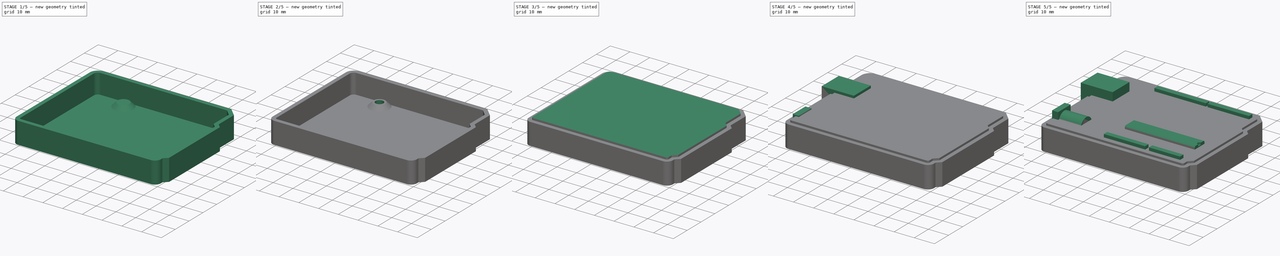
[diagram: build sequence overview — one tinted view per stage of 5, left to right]
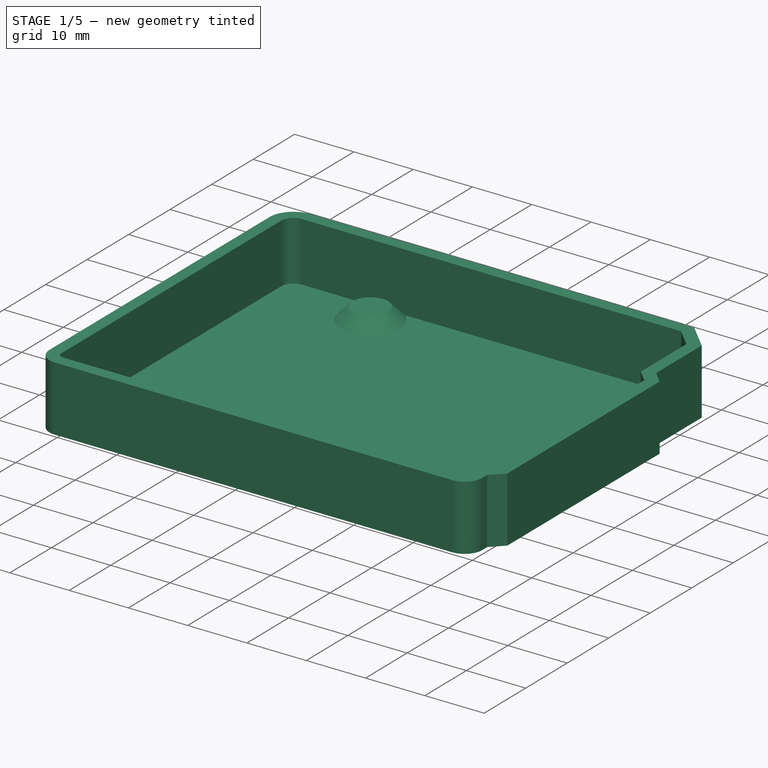
[diagram: stage 1 of 5 — iso view after this stage's code; geometry added in this stage tinted green]
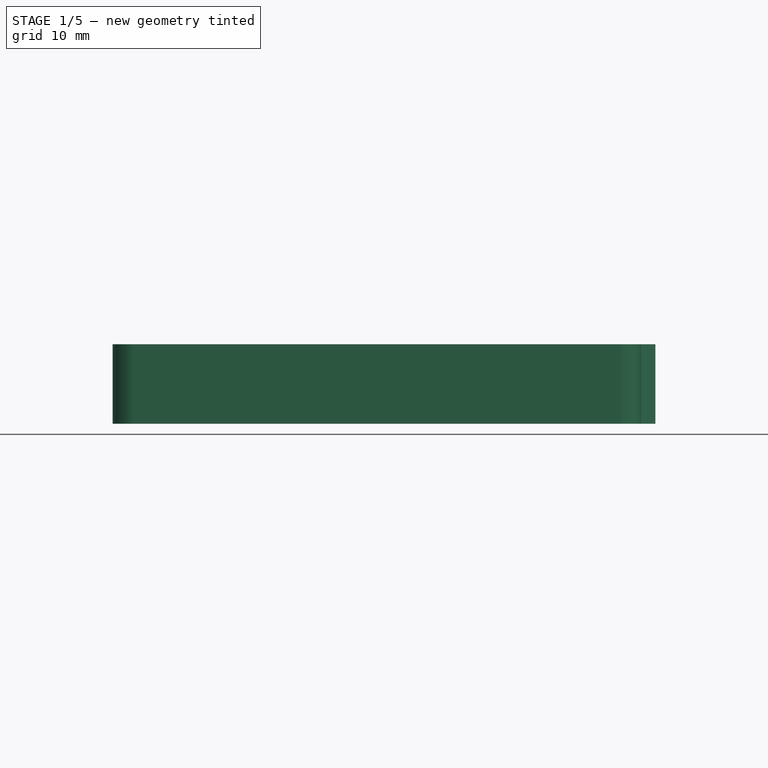
[diagram: stage 1 of 5 — front view after this stage's code; geometry added in this stage tinted green]
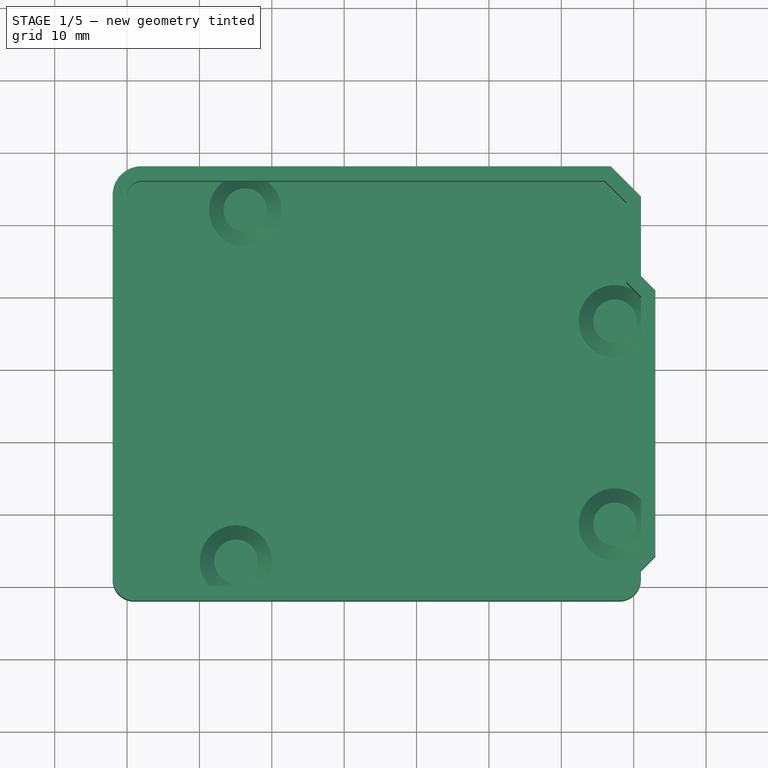
[diagram: stage 1 of 5 — top view after this stage's code; geometry added in this stage tinted green]
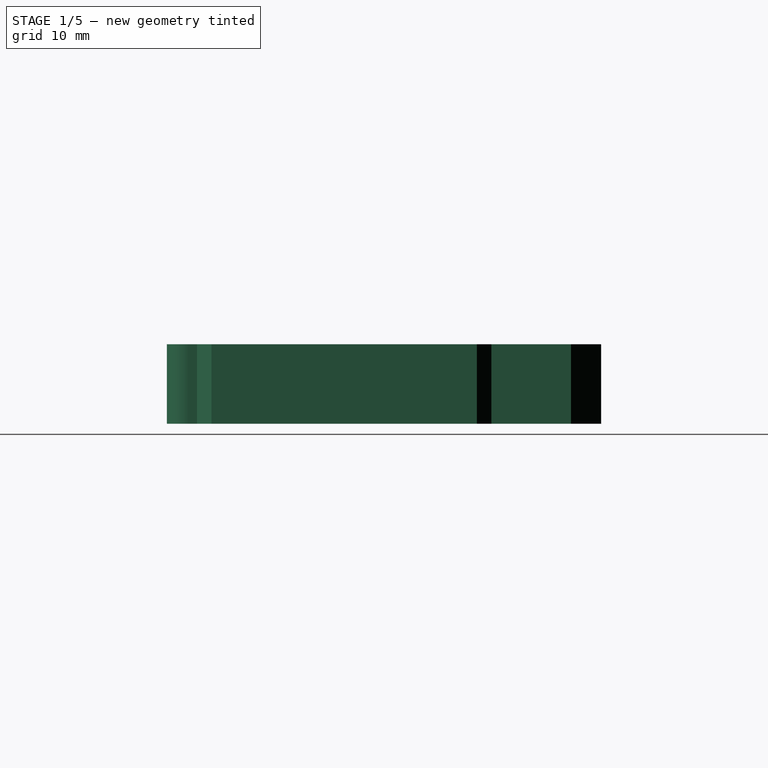
[diagram: stage 1 of 5 — right view after this stage's code; geometry added in this stage tinted green]
FCSTD DOCUMENT  (FreeCAD 0.19R)
Label: CASE-ARDUINO
License: All rights reserved
LicenseURL: http://en.wikipedia.org/wiki/All_rights_reserved
objects: Part::Extrusion×22, Part::Part2DObjectPython×19, Sketcher::SketchObject×10, Part::Cut×6, Part::MultiFuse×5, Part::Loft×4, PartDesign::Chamfer×1, Part::Feature×1
note: 69 computed .brp shape members not serialized (recipe doc carries the construction recipe); baked Part::Feature solids carry a one-line shape summary decoded from their .brp

FEATURE [Sketcher::SketchObject] Sketch006
  MapMode = 5
  Placement = pos=(0,0,1) rot=(0,0,1;0rad)
  sketch-geometry (12):
    g0: LineSegment StartX=1 StartY=0 StartZ=0 EndX=68 EndY=0 EndZ=0
    g1: LineSegment StartX=71 StartY=5 StartZ=0 EndX=71 EndY=40 EndZ=0
    g2: LineSegment StartX=0 StartY=54 StartZ=0 EndX=0 EndY=1 EndZ=0
    g3: LineSegment StartX=69 StartY=53 StartZ=0 EndX=69 EndY=42 EndZ=0
    g4: LineSegment StartX=71 StartY=40 StartZ=0 EndX=69 EndY=42 EndZ=0
    g5: LineSegment StartX=66 StartY=56 StartZ=0 EndX=69 EndY=53 EndZ=0
    g6: LineSegment StartX=69 StartY=1 StartZ=0 EndX=69 EndY=3 EndZ=0
    g7: LineSegment StartX=69 StartY=3 StartZ=0 EndX=71 EndY=5 EndZ=0
    g8: LineSegment StartX=66 StartY=56 StartZ=0 EndX=1.99999 EndY=56 EndZ=0
    g9: ArcOfCircle CenterX=1.99999 CenterY=54 CenterZ=0 NormalX=0 NormalY=0 NormalZ=1 AngleXU=0 Radius=1.99999 StartAngle=1.5708 EndAngle=3.14159
    g10: ArcOfCircle CenterX=1 CenterY=1 CenterZ=0 NormalX=0 NormalY=0 NormalZ=1 AngleXU=0 Radius=1 StartAngle=3.14159 EndAngle=4.71239
    g11: ArcOfCircle CenterX=68 CenterY=1 CenterZ=0 NormalX=0 NormalY=0 NormalZ=1 AngleXU=0 Radius=1 StartAngle=4.71239 EndAngle=6.28319
  constraints (26):
    c: Horizontal(g0)
    c: Vertical(g1)
    c: Vertical(g2)
    c: Vertical(g3)
    c: Vertical(g6)
    c: Coincident(g7,g6)
    c: Coincident(g8,g5)
    c: Coincident(g3,g5)
    c: Coincident(g3,g4)
    c: Coincident(g1,g7)
    c: DistanceY(g5) = 56
    c: DistanceY(g3) = 53
    c: DistanceY(g3) = 42
    c: DistanceY(g1) = 40
    c: DistanceY(g1) = 5
    c: DistanceY(g6) = 3
    c: Tangent(g8,g9) = -1.5708
    c: Tangent(g2,g9) = -1.5708
    c: Tangent(g2,g10) = -1.5708
    c: Tangent(g0,g10) = -1.5708
    c: DistanceX(g10) = 1
    c: DistanceY(g10) = 1
    c: Tangent(g0,g11) = -1.5708
    c: Tangent(g6,g11) = -1.5708
    c: DistanceX(g11) = 68
    c: DistanceY(g11) = 1
FEATURE [Part::Extrusion] Extrude_Sketch006  label="Sketch006_Extrude"
  Base = -> Sketch006
  Dir = (0,0,11)
  DirMode = 0
  FaceMakerClass = Part::FaceMakerExtrusion
  LengthFwd = 0
  LengthRev = 0
  Solid = true
  Symmetric = false
FEATURE [Part::Part2DObjectPython] Circle008  # Draft 2D object (typed FeaturePython)
  FirstAngle = 0
  LastAngle = 0
  MakeFace = true
  MapMode = 5
  Placement = pos=(16.3341,52.0829,3) rot=(0,0,1;0rad)
  Radius = 3
FEATURE [Part::Part2DObjectPython] Circle009  # Draft 2D object (typed FeaturePython)
  FirstAngle = 0
  LastAngle = 0
  MakeFace = true
  MapMode = 5
  Placement = pos=(15.0525,3.55698,3) rot=(0,0,1;0rad)
  Radius = 3
FEATURE [Part::Part2DObjectPython] Circle010  # Draft 2D object (typed FeaturePython)
  FirstAngle = 0
  LastAngle = 0
  MakeFace = true
  MapMode = 5
  Placement = pos=(67.41,36.7498,3) rot=(0,0,1;0rad)
  Radius = 3
FEATURE [Part::Part2DObjectPython] Circle011  # Draft 2D object (typed FeaturePython)
  FirstAngle = 0
  LastAngle = 0
  MakeFace = true
  MapMode = 5
  Placement = pos=(67.4139,8.6684,3) rot=(0,0,1;0rad)
  Radius = 3
FEATURE [Part::Loft] Loft
  Closed = false
  MaxDegree = 5
  Ruled = false
  Sections = -> [Circle,Circle008]
  Solid = true
FEATURE [Part::Loft] Loft001
  Closed = false
  MaxDegree = 5
  Ruled = false
  Sections = -> [Circle002,Circle010]
  Solid = true
FEATURE [Part::Loft] Loft002
  Closed = false
  MaxDegree = 5
  Ruled = false
  Sections = -> [Circle003,Circle011]
  Solid = true
FEATURE [Part::Loft] Loft003
  Closed = false
  MaxDegree = 5
  Ruled = false
  Sections = -> [Circle001,Circle009]
  Solid = true
FEATURE [Part::Feature] Offset001
  shape: bbox 75 x 60 x 2e-07 mm, 0 faces, 0 solids (baked)
FEATURE [Part::Extrusion] Extrude_Offset001  label="Offset_Extrude001"
  Base = -> Offset001
  Dir = (0,0,11)
  DirMode = 0
  FaceMakerClass = Part::FaceMakerExtrusion
  LengthFwd = 0
  LengthRev = 0
  Solid = true
  Symmetric = false
FEATURE [Part::Cut] Cut
  Base = -> Extrude_Offset001
  Refine = true
  Tool = -> Extrude_Sketch006
FEATURE [Part::MultiFuse] Fusion004
  Refine = true
  Shapes = -> [Cut,Loft003,Loft001,Loft002,Loft]
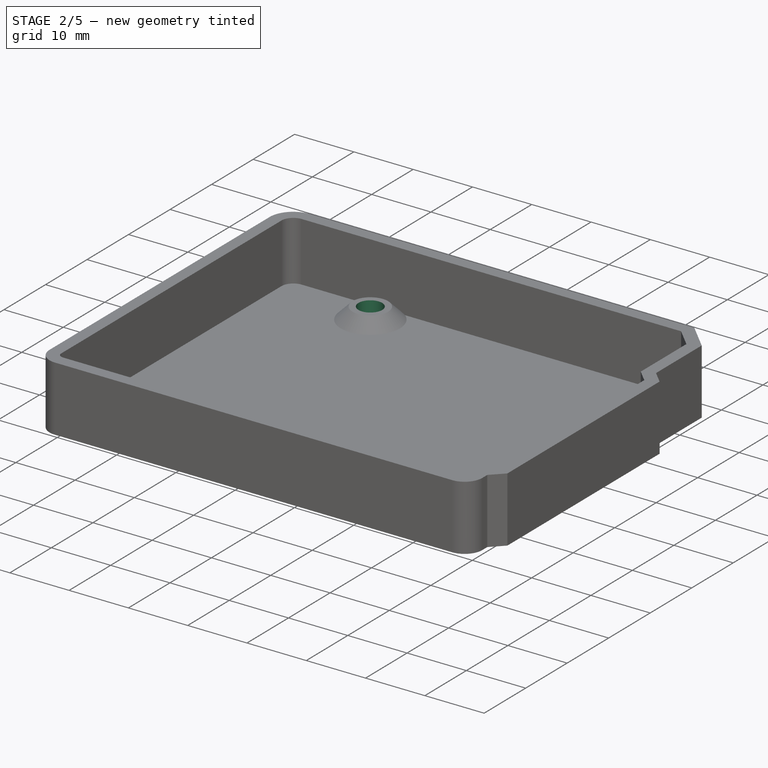
[diagram: stage 2 of 5 — iso view after this stage's code; geometry added in this stage tinted green]
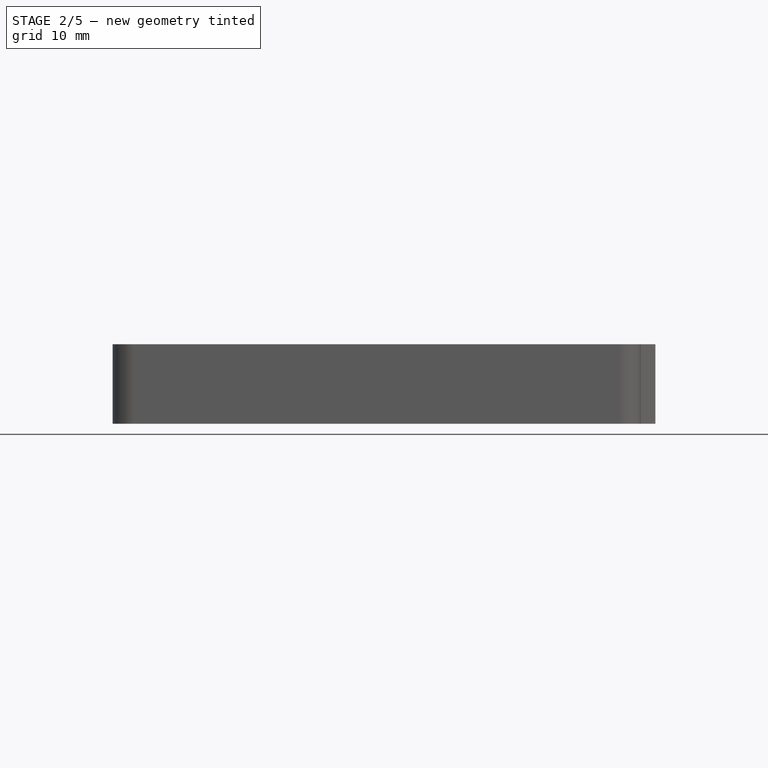
[diagram: stage 2 of 5 — front view after this stage's code; geometry added in this stage tinted green]
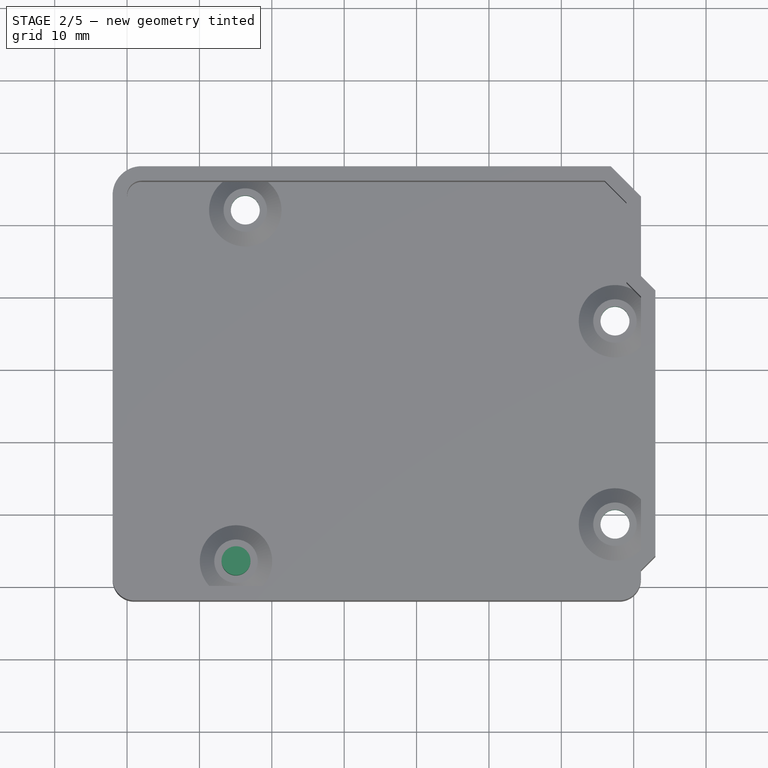
[diagram: stage 2 of 5 — top view after this stage's code; geometry added in this stage tinted green]
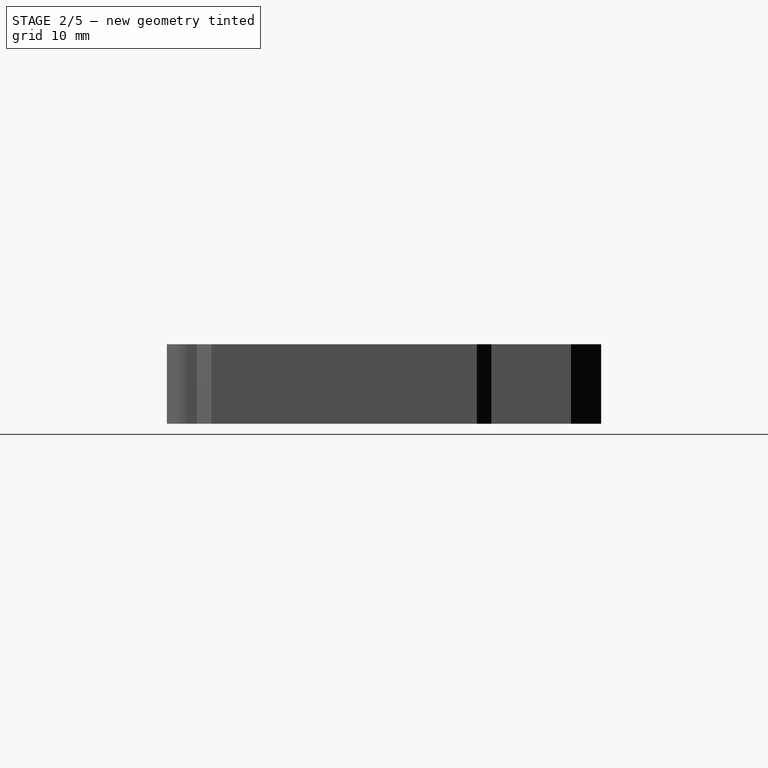
[diagram: stage 2 of 5 — right view after this stage's code; geometry added in this stage tinted green]
FEATURE [Part::Part2DObjectPython] Circle  # Draft 2D object (typed FeaturePython)
  FirstAngle = 0
  LastAngle = 0
  MakeFace = true
  MapMode = 5
  Placement = pos=(16.3341,52.0829,1) rot=(0,0,1;0rad)
  Radius = 5
FEATURE [Part::Part2DObjectPython] Circle001  # Draft 2D object (typed FeaturePython)
  FirstAngle = 0
  LastAngle = 0
  MakeFace = true
  MapMode = 5
  Placement = pos=(15.0525,3.55698,1) rot=(0,0,1;0rad)
  Radius = 5
FEATURE [Part::Part2DObjectPython] Circle002  # Draft 2D object (typed FeaturePython)
  FirstAngle = 0
  LastAngle = 0
  MakeFace = true
  MapMode = 5
  Placement = pos=(67.41,36.7498,1) rot=(0,0,1;0rad)
  Radius = 5
FEATURE [Part::Part2DObjectPython] Circle003  # Draft 2D object (typed FeaturePython)
  FirstAngle = 0
  LastAngle = 0
  MakeFace = true
  MapMode = 5
  Placement = pos=(67.4139,8.6684,1) rot=(0,0,1;0rad)
  Radius = 5
FEATURE [Part::Part2DObjectPython] Circle004 .. Circle007  x4 (patterned run collapsed; names and placements below)
  FirstAngle = 0
  LastAngle = 0
  MakeFace = true
  MapMode = 5
  Radius = 2
  Support = -> [Circle001]
  placements: all 4 at pos=(15.0525,3.55698,1) rot=(1,0,0;3.14159rad)
FEATURE [Part::Extrusion] Extrude_Circle004  label="Circle004_Extrude"
  Base = -> Circle004
  Dir = (0,0,7)
  DirMode = 0
  FaceMakerClass = Part::FaceMakerExtrusion
  LengthFwd = 0
  LengthRev = 0
  Solid = true
  Symmetric = false
FEATURE [Part::Extrusion] Extrude_Circle005  label="Circle005_Extrude"
  Base = -> Circle005
  Dir = (0,0,7)
  DirMode = 0
  FaceMakerClass = Part::FaceMakerExtrusion
  LengthFwd = 0
  LengthRev = 0
  Solid = true
  Symmetric = false
FEATURE [Part::Extrusion] Extrude_Circle006  label="Circle006_Extrude"
  Base = -> Circle006
  Dir = (0,0,7)
  DirMode = 0
  FaceMakerClass = Part::FaceMakerExtrusion
  LengthFwd = 0
  LengthRev = 0
  Solid = true
  Symmetric = false
FEATURE [Part::Extrusion] Extrude_Circle007  label="Circle007_Extrude"
  Base = -> Circle007
  Dir = (0,0,7)
  DirMode = 0
  FaceMakerClass = Part::FaceMakerExtrusion
  LengthFwd = 0
  LengthRev = 0
  Solid = true
  Symmetric = false
FEATURE [Part::Cut] Cut001
  Base = -> Fusion004
  Refine = true
  Tool = -> Extrude_Circle005
FEATURE [Part::Cut] Cut002
  Base = -> Cut001
  Refine = true
  Tool = -> Extrude_Circle006
FEATURE [Part::Cut] Cut003
  Base = -> Cut002
  Refine = true
  Tool = -> Extrude_Circle007
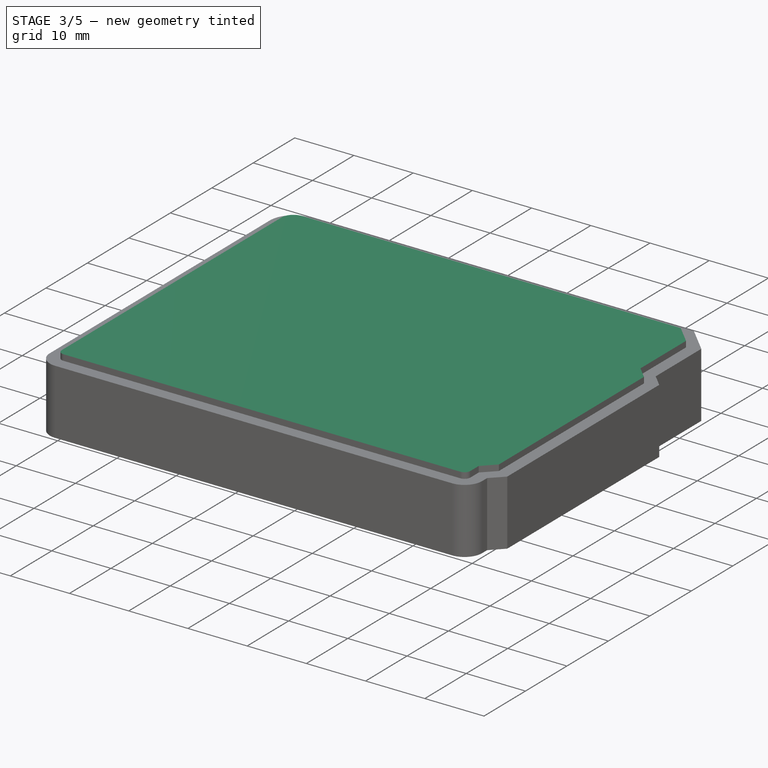
[diagram: stage 3 of 5 — iso view after this stage's code; geometry added in this stage tinted green]
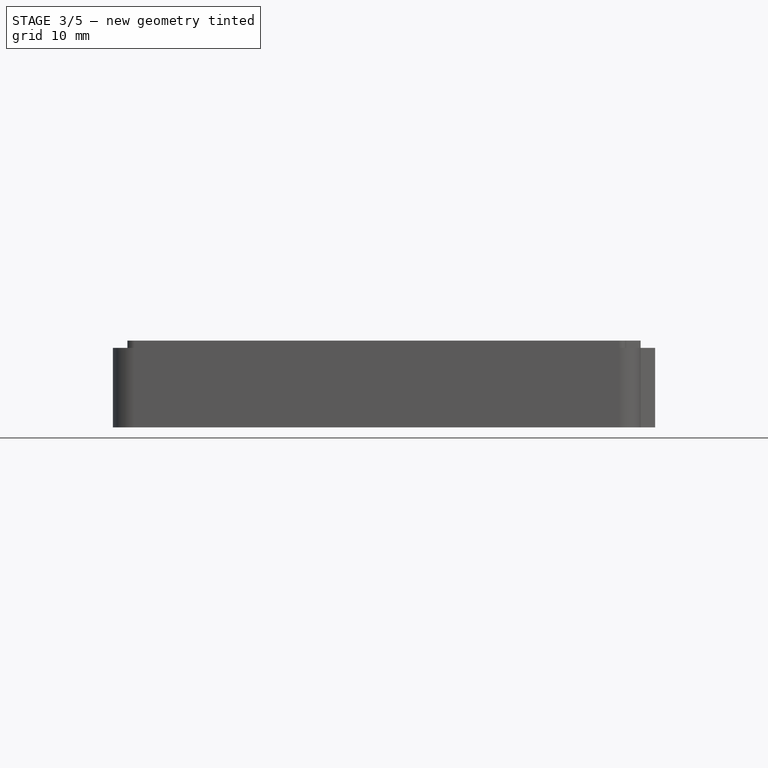
[diagram: stage 3 of 5 — front view after this stage's code; geometry added in this stage tinted green]
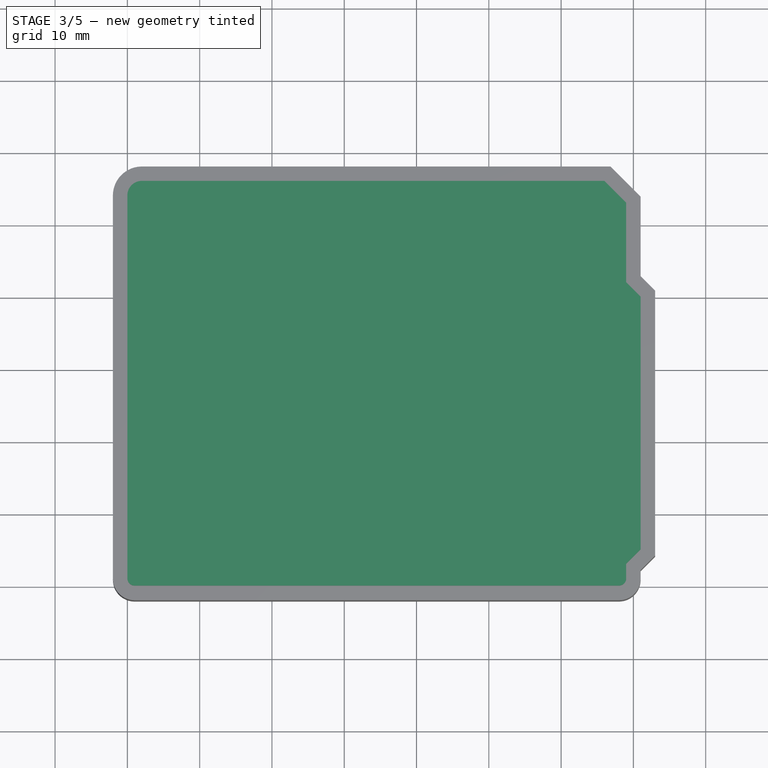
[diagram: stage 3 of 5 — top view after this stage's code; geometry added in this stage tinted green]
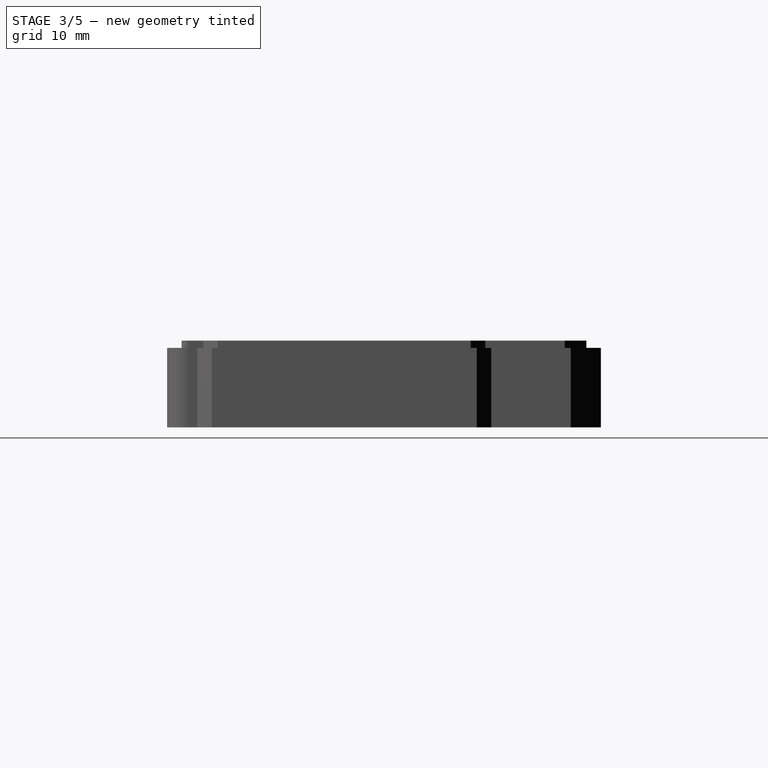
[diagram: stage 3 of 5 — right view after this stage's code; geometry added in this stage tinted green]
FEATURE [Sketcher::SketchObject] Sketch
  MapMode = 5
  sketch-geometry (20):
    g0: LineSegment StartX=1 StartY=0 StartZ=0 EndX=65.4 EndY=0 EndZ=0
    g1: LineSegment StartX=66.4 StartY=1 StartZ=0 EndX=66.4 EndY=2.55 EndZ=0
    g2: LineSegment StartX=64.85 StartY=53.65 StartZ=0 EndX=1 EndY=53.65 EndZ=0
    g3: LineSegment StartX=0 StartY=52.65 StartZ=0 EndX=0 EndY=1 EndZ=0
    g4: LineSegment StartX=66.4 StartY=40.6 StartZ=0 EndX=68.95 EndY=38.05 EndZ=0
    g5: LineSegment StartX=68.95 StartY=38.05 StartZ=0 EndX=68.95 EndY=5.1 EndZ=0
    g6: LineSegment StartX=68.95 StartY=5.1 StartZ=0 EndX=66.4 EndY=2.55 EndZ=0
    g7: LineSegment StartX=66.4 StartY=40.6 StartZ=0 EndX=66.4 EndY=52.1 EndZ=0
    g8: ArcOfCircle CenterX=65.4 CenterY=1 CenterZ=0 NormalX=0 NormalY=0 NormalZ=1 AngleXU=0 Radius=1 StartAngle=4.71239 EndAngle=6.28319
    g9: LineSegment StartX=64.85 StartY=53.65 StartZ=0 EndX=66.4 EndY=52.1 EndZ=0
    g10: LineSegment [constr] StartX=1 StartY=53.65 StartZ=0 EndX=1 EndY=52.65 EndZ=0
    g11: LineSegment [constr] StartX=1 StartY=52.65 StartZ=0 EndX=0 EndY=52.65 EndZ=0
    g12: ArcOfCircle CenterX=1 CenterY=52.65 CenterZ=0 NormalX=0 NormalY=0 NormalZ=1 AngleXU=0 Radius=1 StartAngle=1.5708 EndAngle=3.14159
    g13: LineSegment [constr] StartX=0 StartY=1 StartZ=0 EndX=1 EndY=1 EndZ=0
    g14: LineSegment [constr] StartX=1 StartY=1 StartZ=0 EndX=1 EndY=0 EndZ=0
    g15: ArcOfCircle CenterX=1 CenterY=1 CenterZ=0 NormalX=0 NormalY=0 NormalZ=1 AngleXU=0 Radius=1 StartAngle=3.14159 EndAngle=4.71239
    g16: Circle CenterX=14.0525 CenterY=2.55698 CenterZ=0 NormalX=0 NormalY=0 NormalZ=1 AngleXU=0 Radius=1.62
    g17: Circle CenterX=15.3341 CenterY=51.0829 CenterZ=0 NormalX=0 NormalY=0 NormalZ=1 AngleXU=0 Radius=1.62
    g18: Circle CenterX=66.41 CenterY=35.7498 CenterZ=0 NormalX=0 NormalY=0 NormalZ=1 AngleXU=0 Radius=1.62
    g19: Circle CenterX=66.4139 CenterY=7.6684 CenterZ=0 NormalX=0 NormalY=0 NormalZ=1 AngleXU=0 Radius=1.62
  constraints (34):
    c: Horizontal(g0)
    c: Horizontal(g2)
    c: Vertical(g1)
    c: Vertical(g3)
    c: Coincident(g4,g5)
    c: Vertical(g5)
    c: Coincident(g5,g6)
    c: Coincident(g1,g6)
    c: Coincident(g7,g4)
    c: Tangent(g1,g7)
    c: Tangent(g0,g8) = -1.5708
    c: Tangent(g1,g8) = -1.5708
    c: Coincident(g2,g9)
    c: Coincident(g9,g7)
    c: Coincident(g10,g11)
    c: Horizontal(g11)
    c: Vertical(g10)
    c: PointOnObject(g2,g10)
    c: PointOnObject(g3,g11)
    c: Coincident(g12,g10)
    c: PointOnObject(g12,g2)
    c: PointOnObject(g12,g3)
    c: Coincident(g13,g14)
    c: Horizontal(g13)
    c: Vertical(g14)
    c: PointOnObject(g3,g13)
    c: Coincident(g15,g13)
    c: PointOnObject(g14,g15)
    c: PointOnObject(g15,g3)
    c: PointOnObject(g15,g0)
    c: Equal(g19,g18)
    c: Equal(g18,g17)
    c: Equal(g17,g16)
    c: Radius(g16) = 1.62
FEATURE [Part::Extrusion] Extrude_Sketch  label="Sketch_Extrude"
  Base = -> Sketch
  Dir = (0,0,1.5)
  DirMode = 0
  FaceMakerClass = Part::FaceMakerExtrusion
  LengthFwd = 0
  LengthRev = 0
  Solid = true
  Symmetric = false
FEATURE [Part::Part2DObjectPython] Rectangle009  # Draft 2D object (typed FeaturePython)
  ChamferSize = 0
  Columns = 1
  FilletRadius = 0
  Height = 11
  Length = 9
  MakeFace = true
  MapMode = 5
  Placement = pos=(-1.5,13.5,1.5) rot=(0.57735,-0.57735,-0.57735;2.0944rad)
  Rows = 1
  Support = -> [Extrude_Sketch]
FEATURE [Part::Extrusion] Extrude_Rectangle009  label="Rectangle009_Extrude"
  Base = -> Rectangle009
  Dir = (3,0,0)
  DirMode = 0
  FaceMakerClass = Part::FaceMakerExtrusion
  LengthFwd = 0
  LengthRev = 0
  Solid = true
  Symmetric = false
FEATURE [Sketcher::SketchObject] Sketch005
  MapMode = 5
  Placement = pos=(1.5,3e-16,-2e-16) rot=(0.57735,0.57735,0.57735;2.0944rad)
  Support = -> [Extrude_Rectangle009]
  sketch-geometry (6):
    g0: LineSegment StartX=4.5 StartY=1.5 StartZ=0 EndX=13.5 EndY=1.5 EndZ=0
    g1: LineSegment StartX=13.5 StartY=1.5 StartZ=0 EndX=13.5 EndY=7.5 EndZ=0
    g2: LineSegment StartX=13.5 StartY=7.5 StartZ=0 EndX=13 EndY=7.5 EndZ=0
    g3: LineSegment StartX=4.5 StartY=7.5 StartZ=0 EndX=4.5 EndY=1.5 EndZ=0
    g4: ArcOfCircle CenterX=9 CenterY=7.5 CenterZ=0 NormalX=0 NormalY=0 NormalZ=1 AngleXU=0 Radius=4 StartAngle=0 EndAngle=3.14159
    g5: LineSegment StartX=5 StartY=7.5 StartZ=0 EndX=4.5 EndY=7.5 EndZ=0
  constraints (11):
    c: Coincident(g0,g1)
    c: Coincident(g1,g2)
    c: Coincident(g5,g3)
    c: Coincident(g3,g0)
    c: Horizontal(g0)
    c: Horizontal(g2)
    c: Vertical(g1)
    c: Vertical(g3)
    c: Tangent(g2,g5)
    c: Coincident(g4,g5)
    c: Coincident(g2,g4)
FEATURE [Part::Extrusion] Extrude_Sketch005  label="Sketch005_Extrude"
  Base = -> Sketch005
  Dir = (11,0,0)
  DirMode = 0
  FaceMakerClass = Part::FaceMakerExtrusion
  LengthFwd = 0
  LengthRev = 0
  Solid = true
  Symmetric = false
FEATURE [Sketcher::SketchObject] Sketch007
  MapMode = 5
  Placement = pos=(-2,0,0) rot=(0.57735,-0.57735,-0.57735;2.0944rad)
  sketch-geometry (8):
    g0: LineSegment StartX=-46 StartY=11 StartZ=0 EndX=-32 EndY=11 EndZ=0
    g1: LineSegment StartX=-32 StartY=11 StartZ=0 EndX=-32 EndY=3 EndZ=0
    g2: LineSegment StartX=-32 StartY=3 StartZ=0 EndX=-46 EndY=3 EndZ=0
    g3: LineSegment StartX=-46 StartY=3 StartZ=0 EndX=-46 EndY=11 EndZ=0
    g4: LineSegment StartX=-16 StartY=11 StartZ=0 EndX=-4 EndY=11 EndZ=0
    g5: LineSegment StartX=-4 StartY=11 StartZ=0 EndX=-4 EndY=3 EndZ=0
    g6: LineSegment StartX=-4 StartY=3 StartZ=0 EndX=-16 EndY=3 EndZ=0
    g7: LineSegment StartX=-16 StartY=3 StartZ=0 EndX=-16 EndY=11 EndZ=0
  constraints (16):
    c: Coincident(g0,g1)
    c: Coincident(g1,g2)
    c: Coincident(g2,g3)
    c: Coincident(g3,g0)
    c: Horizontal(g0)
    c: Horizontal(g2)
    c: Vertical(g1)
    c: Vertical(g3)
    c: Coincident(g4,g5)
    c: Coincident(g5,g6)
    c: Coincident(g6,g7)
    c: Coincident(g7,g4)
    c: Horizontal(g4)
    c: Horizontal(g6)
    c: Vertical(g5)
    c: Vertical(g7)
FEATURE [Part::Extrusion] Extrude_Sketch007  label="Sketch007_Extrude"
  Base = -> Sketch007
  Dir = (2,0,0)
  DirMode = 0
  FaceMakerClass = Part::FaceMakerExtrusion
  LengthFwd = 0
  LengthRev = 0
  Solid = true
  Symmetric = false
FEATURE [Sketcher::SketchObject] Sketch008
  MapMode = 5
  Placement = pos=(0,0,1) rot=(0,0,1;0rad)
  sketch-geometry (12):
    g0: LineSegment StartX=1 StartY=0 StartZ=0 EndX=68 EndY=0 EndZ=0
    g1: LineSegment StartX=71 StartY=5 StartZ=0 EndX=71 EndY=40 EndZ=0
    g2: LineSegment StartX=0 StartY=54 StartZ=0 EndX=0 EndY=1 EndZ=0
    g3: LineSegment StartX=69 StartY=53 StartZ=0 EndX=69 EndY=42 EndZ=0
    g4: LineSegment StartX=71 StartY=40 StartZ=0 EndX=69 EndY=42 EndZ=0
    g5: LineSegment StartX=66 StartY=56 StartZ=0 EndX=69 EndY=53 EndZ=0
    g6: LineSegment StartX=69 StartY=1 StartZ=0 EndX=69 EndY=3 EndZ=0
    g7: LineSegment StartX=69 StartY=3 StartZ=0 EndX=71 EndY=5 EndZ=0
    g8: LineSegment StartX=66 StartY=56 StartZ=0 EndX=1.99999 EndY=56 EndZ=0
    g9: ArcOfCircle CenterX=1.99999 CenterY=54 CenterZ=0 NormalX=0 NormalY=0 NormalZ=1 AngleXU=0 Radius=1.99999 StartAngle=1.5708 EndAngle=3.14159
    g10: ArcOfCircle CenterX=1 CenterY=1 CenterZ=0 NormalX=0 NormalY=0 NormalZ=1 AngleXU=0 Radius=1 StartAngle=3.14159 EndAngle=4.71239
    g11: ArcOfCircle CenterX=68 CenterY=1 CenterZ=0 NormalX=0 NormalY=0 NormalZ=1 AngleXU=0 Radius=1 StartAngle=4.71239 EndAngle=6.28319
  constraints (26):
    c: Horizontal(g0)
    c: Vertical(g1)
    c: Vertical(g2)
    c: Vertical(g3)
    c: Vertical(g6)
    c: Coincident(g7,g6)
    c: Coincident(g8,g5)
    c: Coincident(g3,g5)
    c: Coincident(g3,g4)
    c: Coincident(g1,g7)
    c: DistanceY(g5) = 56
    c: DistanceY(g3) = 53
    c: DistanceY(g3) = 42
    c: DistanceY(g1) = 40
    c: DistanceY(g1) = 5
    c: DistanceY(g6) = 3
    c: Tangent(g8,g9) = -1.5708
    c: Tangent(g2,g9) = -1.5708
    c: Tangent(g2,g10) = -1.5708
    c: Tangent(g0,g10) = -1.5708
    c: DistanceX(g10) = 1
    c: DistanceY(g10) = 1
    c: Tangent(g0,g11) = -1.5708
    c: Tangent(g6,g11) = -1.5708
    c: DistanceX(g11) = 68
    c: DistanceY(g11) = 1
FEATURE [Part::Extrusion] Extrude_Sketch008  label="Sketch006_Extrude001"
  Base = -> Sketch008
  Dir = (0,0,11)
  DirMode = 0
  FaceMakerClass = Part::FaceMakerExtrusion
  LengthFwd = 0
  LengthRev = 0
  Solid = true
  Symmetric = false
FEATURE [Sketcher::SketchObject] Sketch009
  MapMode = 5
  Placement = pos=(-2,0,0) rot=(0.57735,-0.57735,-0.57735;2.0944rad)
  sketch-geometry (8):
    g0: LineSegment StartX=-46 StartY=11 StartZ=0 EndX=-32 EndY=11 EndZ=0
    g1: LineSegment StartX=-32 StartY=11 StartZ=0 EndX=-32 EndY=3 EndZ=0
    g2: LineSegment StartX=-32 StartY=3 StartZ=0 EndX=-46 EndY=3 EndZ=0
    g3: LineSegment StartX=-46 StartY=3 StartZ=0 EndX=-46 EndY=11 EndZ=0
    g4: LineSegment StartX=-16 StartY=11 StartZ=0 EndX=-4 EndY=11 EndZ=0
    g5: LineSegment StartX=-4 StartY=11 StartZ=0 EndX=-4 EndY=3 EndZ=0
    g6: LineSegment StartX=-4 StartY=3 StartZ=0 EndX=-16 EndY=3 EndZ=0
    g7: LineSegment StartX=-16 StartY=3 StartZ=0 EndX=-16 EndY=11 EndZ=0
  constraints (16):
    c: Coincident(g0,g1)
    c: Coincident(g1,g2)
    c: Coincident(g2,g3)
    c: Coincident(g3,g0)
    c: Horizontal(g0)
    c: Horizontal(g2)
    c: Vertical(g1)
    c: Vertical(g3)
    c: Coincident(g4,g5)
    c: Coincident(g5,g6)
    c: Coincident(g6,g7)
    c: Coincident(g7,g4)
    c: Horizontal(g4)
    c: Horizontal(g6)
    c: Vertical(g5)
    c: Vertical(g7)
FEATURE [Part::Extrusion] Extrude_Sketch009  label="Sketch007_Extrude001"
  Base = -> Sketch009
  Dir = (2,0,0)
  DirMode = 0
  FaceMakerClass = Part::FaceMakerExtrusion
  LengthFwd = 0
  LengthRev = 0
  Solid = true
  Symmetric = false
FEATURE [Part::Cut] Cut004
  Base = -> Cut003
  Refine = true
  Tool = -> Extrude_Circle004
FEATURE [Part::Cut] Cut005
  Base = -> Cut004
  Refine = true
  Tool = -> Extrude_Sketch009
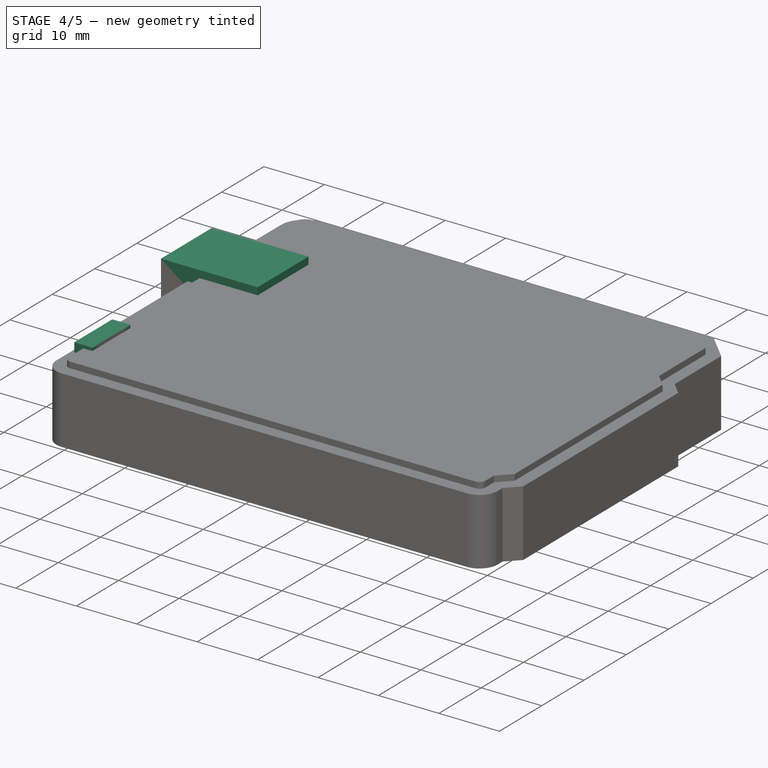
[diagram: stage 4 of 5 — iso view after this stage's code; geometry added in this stage tinted green]
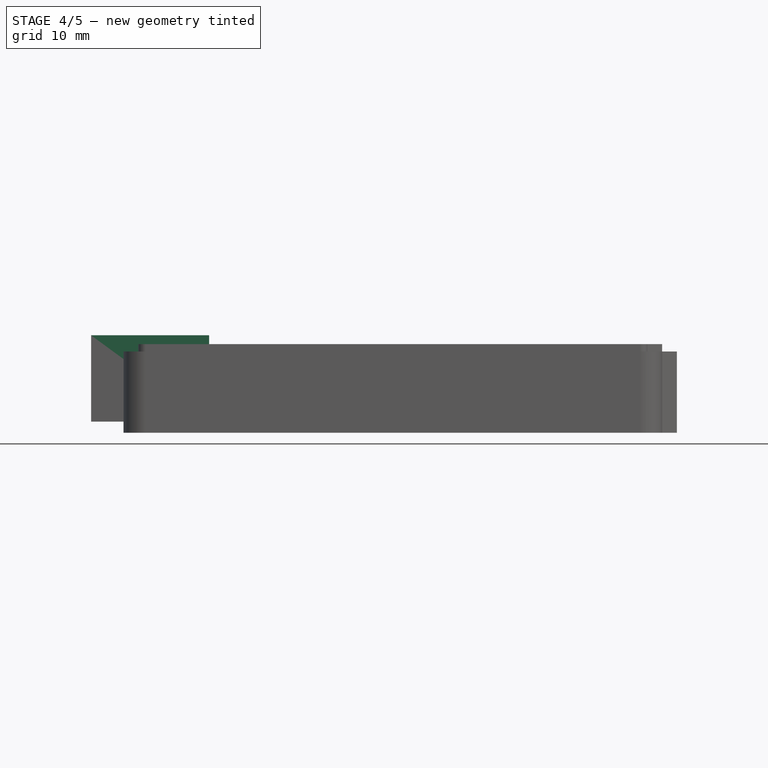
[diagram: stage 4 of 5 — front view after this stage's code; geometry added in this stage tinted green]
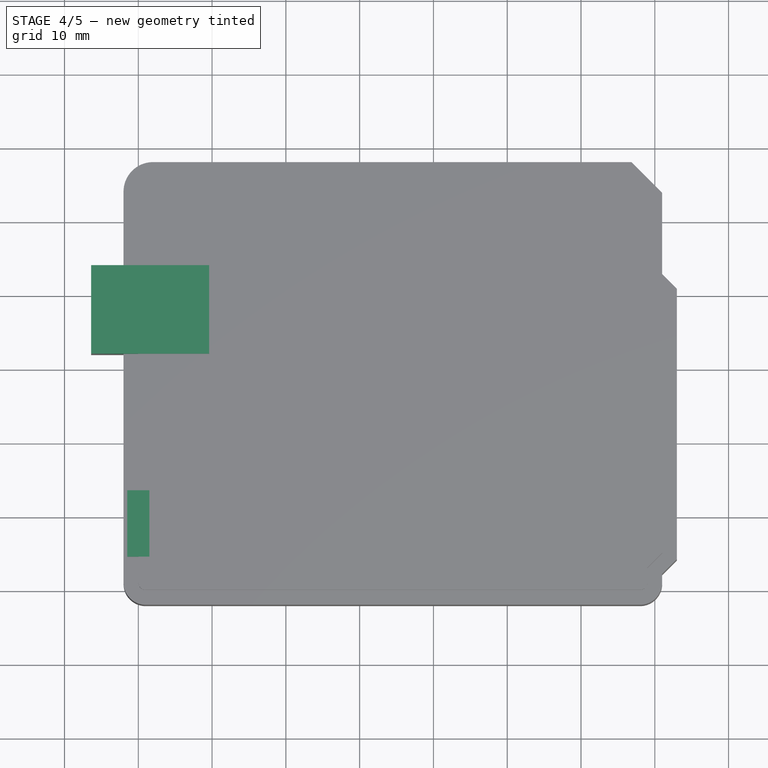
[diagram: stage 4 of 5 — top view after this stage's code; geometry added in this stage tinted green]
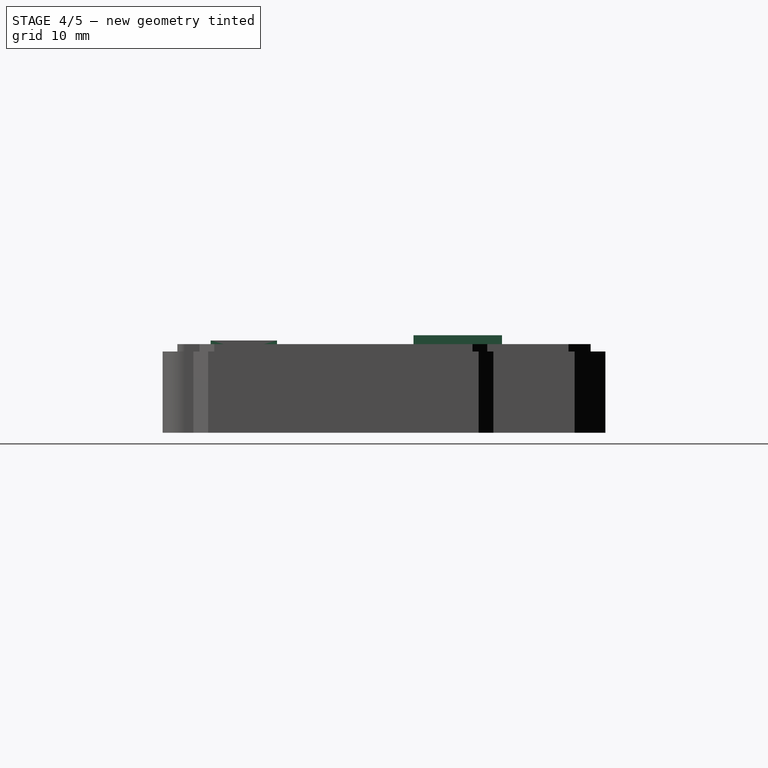
[diagram: stage 4 of 5 — right view after this stage's code; geometry added in this stage tinted green]
FEATURE [Part::Part2DObjectPython] Rectangle006  # Draft 2D object (typed FeaturePython)
  ChamferSize = 0
  Columns = 1
  FilletRadius = 0
  Height = 10
  Length = 35.4
  MakeFace = true
  MapMode = 5
  Placement = pos=(29,11.5,1.5) rot=(0,0,1;0rad)
  Rows = 1
  Support = -> [Extrude_Sketch]
FEATURE [Part::Extrusion] Extrude_Rectangle006  label="Rectangle006_Extrude"
  Base = -> Rectangle006
  Dir = (0,0,5)
  DirMode = 0
  FaceMakerClass = Part::FaceMakerExtrusion
  LengthFwd = 0
  LengthRev = 0
  Solid = true
  Symmetric = false
FEATURE [Sketcher::SketchObject] Sketch001
  MapMode = 5
  Placement = pos=(0,0,6.5) rot=(0,0,1;0rad)
  Support = -> [Extrude_Rectangle006]
  sketch-geometry (4):
    g0: LineSegment StartX=29 StartY=13 StartZ=0 EndX=64 EndY=13 EndZ=0
    g1: LineSegment StartX=64 StartY=13 StartZ=0 EndX=64 EndY=20 EndZ=0
    g2: LineSegment StartX=64 StartY=20 StartZ=0 EndX=29 EndY=20 EndZ=0
    g3: LineSegment StartX=29 StartY=20 StartZ=0 EndX=29 EndY=13 EndZ=0
  constraints (8):
    c: Coincident(g0,g1)
    c: Coincident(g1,g2)
    c: Coincident(g2,g3)
    c: Coincident(g3,g0)
    c: Horizontal(g0)
    c: Horizontal(g2)
    c: Vertical(g1)
    c: Vertical(g3)
FEATURE [Part::Extrusion] Extrude_Sketch001  label="Sketch001_Extrude"
  Base = -> Sketch001
  Dir = (0,0,3)
  DirMode = 0
  FaceMakerClass = Part::FaceMakerExtrusion
  LengthFwd = 0
  LengthRev = 0
  Solid = true
  Symmetric = false
FEATURE [Sketcher::SketchObject] Sketch002
  MapMode = 5
  Placement = pos=(0,0,9.5) rot=(0,0,1;0rad)
  Support = -> [Extrude_Sketch001]
  sketch-geometry (6):
    g0: LineSegment StartX=29 StartY=13 StartZ=0 EndX=64 EndY=13 EndZ=0
    g1: LineSegment StartX=64 StartY=13 StartZ=0 EndX=64 EndY=15.5 EndZ=0
    g2: LineSegment StartX=64 StartY=20 StartZ=0 EndX=29 EndY=20 EndZ=0
    g3: LineSegment StartX=29 StartY=20 StartZ=0 EndX=29 EndY=13 EndZ=0
    g4: ArcOfCircle CenterX=64 CenterY=16.5 CenterZ=0 NormalX=0 NormalY=0 NormalZ=1 AngleXU=0 Radius=1 StartAngle=1.5708 EndAngle=4.71239
    g5: LineSegment StartX=64 StartY=17.5 StartZ=0 EndX=64 EndY=20 EndZ=0
  constraints (11):
    c: Coincident(g0,g1)
    c: Coincident(g5,g2)
    c: Coincident(g2,g3)
    c: Coincident(g3,g0)
    c: Horizontal(g0)
    c: Horizontal(g2)
    c: Vertical(g1)
    c: Vertical(g3)
    c: Coincident(g5,g4)
    c: Tangent(g1,g5)
    c: Coincident(g1,g4)
FEATURE [Part::Extrusion] Extrude_Sketch002  label="Sketch002_Extrude"
  Base = -> Sketch002
  Dir = (0,0,1)
  DirMode = 0
  FaceMakerClass = Part::FaceMakerExtrusion
  LengthFwd = 0
  LengthRev = 0
  Solid = true
  Symmetric = false
FEATURE [Sketcher::SketchObject] Sketch003
  MapMode = 5
  Placement = pos=(0,0,1.5) rot=(0,0,1;0rad)
  Support = -> [Extrude_Sketch]
  sketch-geometry (4):
    g0: LineSegment StartX=3 StartY=53 StartZ=0 EndX=9 EndY=53 EndZ=0
    g1: LineSegment StartX=9 StartY=53 StartZ=0 EndX=9 EndY=47 EndZ=0
    g2: LineSegment StartX=9 StartY=47 StartZ=0 EndX=3 EndY=47 EndZ=0
    g3: LineSegment StartX=3 StartY=47 StartZ=0 EndX=3 EndY=53 EndZ=0
  constraints (8):
    c: Coincident(g0,g1)
    c: Coincident(g1,g2)
    c: Coincident(g2,g3)
    c: Coincident(g3,g0)
    c: Horizontal(g0)
    c: Horizontal(g2)
    c: Vertical(g1)
    c: Vertical(g3)
FEATURE [Part::Extrusion] Extrude_Sketch003  label="Sketch003_Extrude"
  Base = -> Sketch003
  Dir = (0,0,2)
  DirMode = 0
  FaceMakerClass = Part::FaceMakerExtrusion
  LengthFwd = 0
  LengthRev = 0
  Solid = true
  Symmetric = false
FEATURE [Sketcher::SketchObject] Sketch004
  MapMode = 5
  Placement = pos=(0,0,3.5) rot=(0,0,1;0rad)
  Support = -> [Extrude_Sketch003]
  sketch-geometry (1):
    g0: Circle CenterX=6 CenterY=50 CenterZ=0 NormalX=0 NormalY=0 NormalZ=1 AngleXU=0 Radius=1.5
FEATURE [Part::Extrusion] Extrude_Sketch004  label="Sketch004_Extrude"
  Base = -> Sketch004
  Dir = (0,0,1.5)
  DirMode = 0
  FaceMakerClass = Part::FaceMakerExtrusion
  LengthFwd = 0
  LengthRev = 0
  Solid = true
  Symmetric = false
FEATURE [Part::Part2DObjectPython] Rectangle008  # Draft 2D object (typed FeaturePython)
  ChamferSize = 0
  Columns = 1
  FilletRadius = 0
  Height = 12
  Length = 16
  MakeFace = true
  MapMode = 5
  Placement = pos=(-6.4,32,1.5) rot=(0,0,1;0rad)
  Rows = 1
FEATURE [Part::Extrusion] Extrude_Rectangle008  label="Rectangle008_Extrude"
  Base = -> Rectangle008
  Dir = (0,0,11.7)
  DirMode = 0
  FaceMakerClass = Part::FaceMakerExtrusion
  LengthFwd = 0
  LengthRev = 0
  Solid = true
  Symmetric = false
FEATURE [Part::MultiFuse] Fusion001
  Refine = true
  Shapes = -> [Extrude_Sketch005,Extrude_Rectangle009]
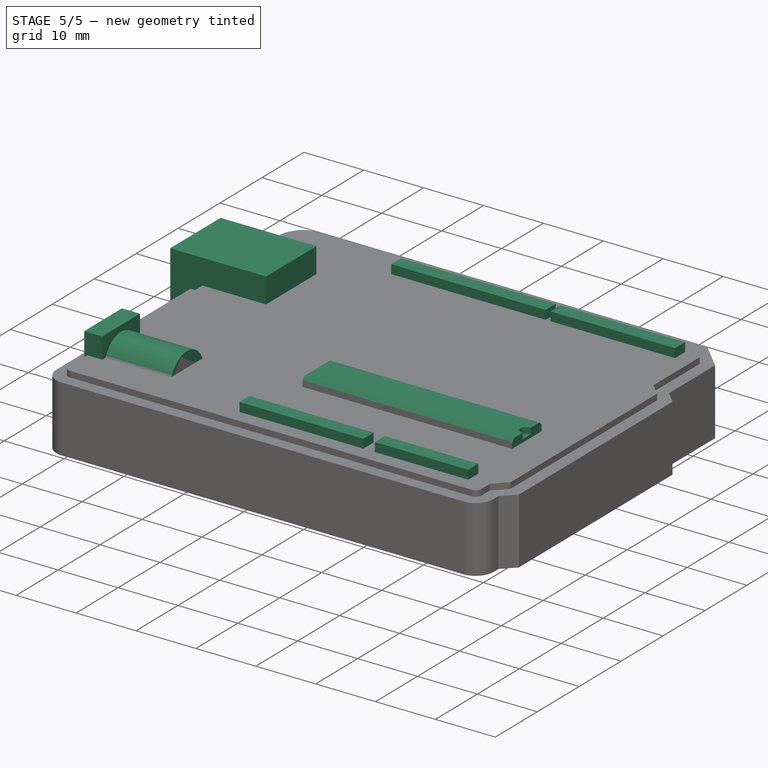
[diagram: stage 5 of 5 — iso view after this stage's code; geometry added in this stage tinted green]
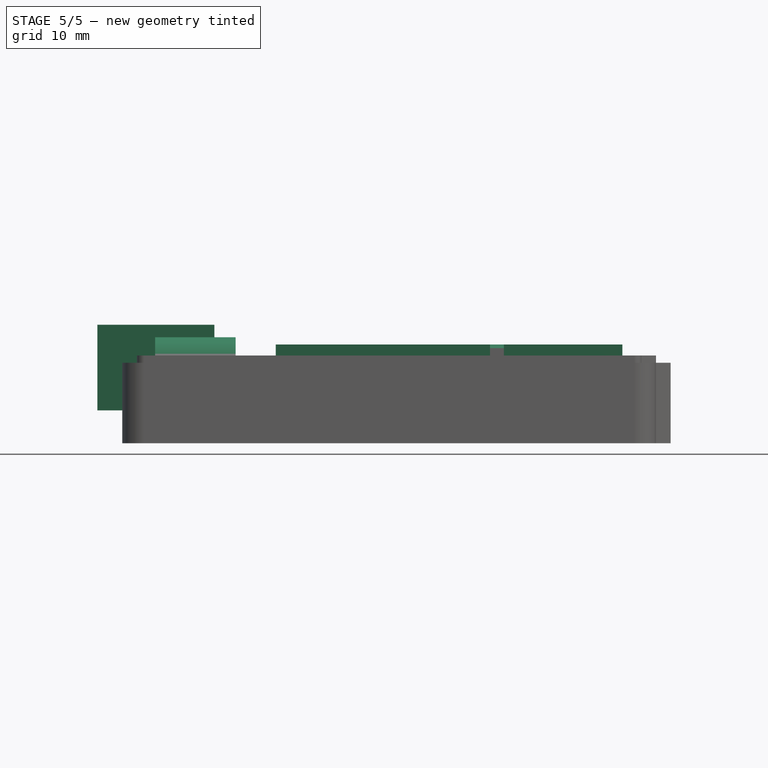
[diagram: stage 5 of 5 — front view after this stage's code; geometry added in this stage tinted green]
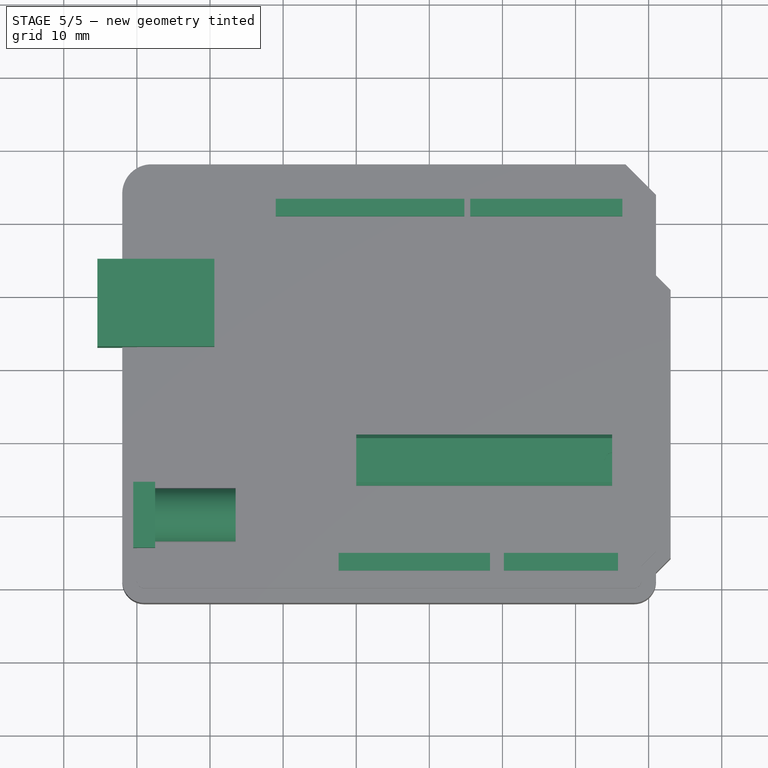
[diagram: stage 5 of 5 — top view after this stage's code; geometry added in this stage tinted green]
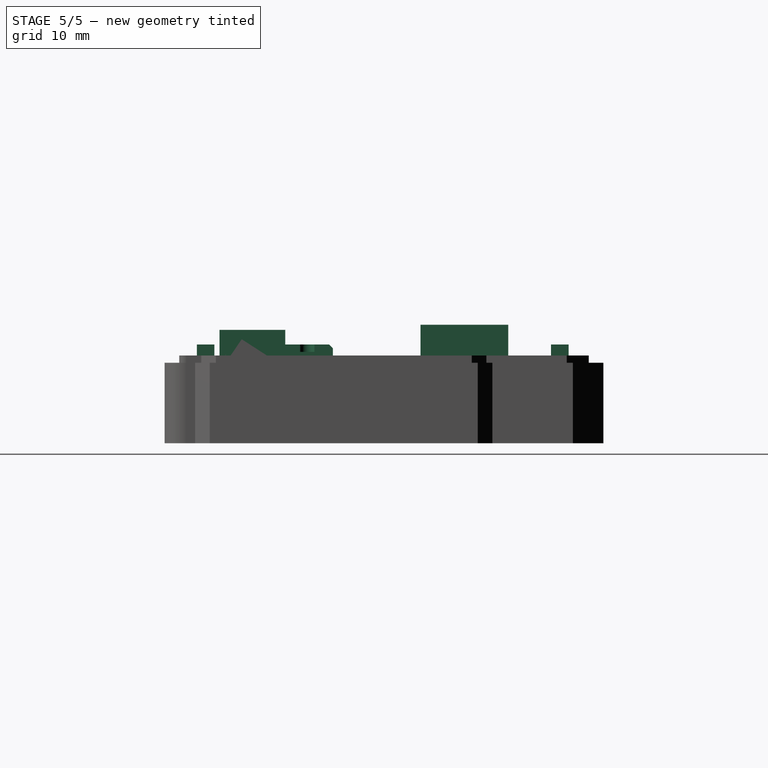
[diagram: stage 5 of 5 — right view after this stage's code; geometry added in this stage tinted green]
FEATURE [Part::Part2DObjectPython] Rectangle  # Draft 2D object (typed FeaturePython)
  ChamferSize = 0
  Columns = 1
  FilletRadius = 0
  Height = 2.4
  Length = 20.7
  MakeFace = true
  MapMode = 5
  Placement = pos=(26.6,1.4,1.5) rot=(0,0,1;0rad)
  Rows = 1
  Support = -> [Extrude_Sketch]
FEATURE [Part::Part2DObjectPython] Rectangle001  # Draft 2D object (typed FeaturePython)
  ChamferSize = 0
  Columns = 1
  FilletRadius = 0
  Height = 2.4
  Length = 15.6
  MakeFace = true
  MapMode = 5
  Placement = pos=(49.2,1.4,1.5) rot=(0,0,1;0rad)
  Rows = 1
  Support = -> [Extrude_Sketch]
FEATURE [Part::Part2DObjectPython] Rectangle003  # Draft 2D object (typed FeaturePython)
  ChamferSize = 0
  Columns = 1
  FilletRadius = 0
  Height = 2.4
  Length = 25.8
  MakeFace = true
  MapMode = 5
  Placement = pos=(18,49.85,1.5) rot=(0,0,1;0rad)
  Rows = 1
  Support = -> [Extrude_Sketch]
FEATURE [Part::Part2DObjectPython] Rectangle004  # Draft 2D object (typed FeaturePython)
  ChamferSize = 0
  Columns = 1
  FilletRadius = 0
  Height = 2.4
  Length = 20.8
  MakeFace = true
  MapMode = 5
  Placement = pos=(44.6,49.85,1.5) rot=(0,0,1;0rad)
  Rows = 1
  Support = -> [Extrude_Sketch]
FEATURE [Part::Extrusion] Extrude_Rectangle  label="Rectangle_Extrude"
  Base = -> Rectangle
  Dir = (0,0,9)
  DirMode = 0
  FaceMakerClass = Part::FaceMakerExtrusion
  LengthFwd = 0
  LengthRev = 0
  Solid = true
  Symmetric = false
FEATURE [Part::Extrusion] Extrude_Rectangle001  label="Rectangle001_Extrude"
  Base = -> Rectangle001
  Dir = (0,0,9)
  DirMode = 0
  FaceMakerClass = Part::FaceMakerExtrusion
  LengthFwd = 0
  LengthRev = 0
  Solid = true
  Symmetric = false
FEATURE [Part::Extrusion] Extrude_Rectangle003  label="Rectangle003_Extrude"
  Base = -> Rectangle003
  Dir = (0,0,9)
  DirMode = 0
  FaceMakerClass = Part::FaceMakerExtrusion
  LengthFwd = 0
  LengthRev = 0
  Solid = true
  Symmetric = false
FEATURE [Part::Extrusion] Extrude_Rectangle004  label="Rectangle004_Extrude"
  Base = -> Rectangle004
  Dir = (0,0,9)
  DirMode = 0
  FaceMakerClass = Part::FaceMakerExtrusion
  LengthFwd = 0
  LengthRev = 0
  Solid = true
  Symmetric = false
FEATURE [Part::MultiFuse] Fusion
  Refine = true
  Shapes = -> [Extrude_Sketch001,Extrude_Sketch002]
FEATURE [PartDesign::Chamfer] Chamfer
  Angle = 45
  Base = -> Fusion [Edge6,Edge14]
  ChamferType = 0
  FlipDirection = false
  Refine = true
  Size = 0.5
  Size2 = 1
  SupportTransform = false
FEATURE [Part::MultiFuse] Fusion002
  Refine = true
  Shapes = -> [Extrude_Rectangle003,Extrude_Rectangle004,Chamfer,Extrude_Rectangle006,Extrude_Rectangle001,Extrude_Rectangle,Fusion001,Extrude_Rectangle008,Extrude_Sketch003,Extrude_Sketch004]
FEATURE [Part::MultiFuse] Fusion003  label="ARDUINO"
  Placement = pos=(1,1,3) rot=(0,0,1;0rad)
  Refine = true
  Shapes = -> [Fusion002,Extrude_Sketch]
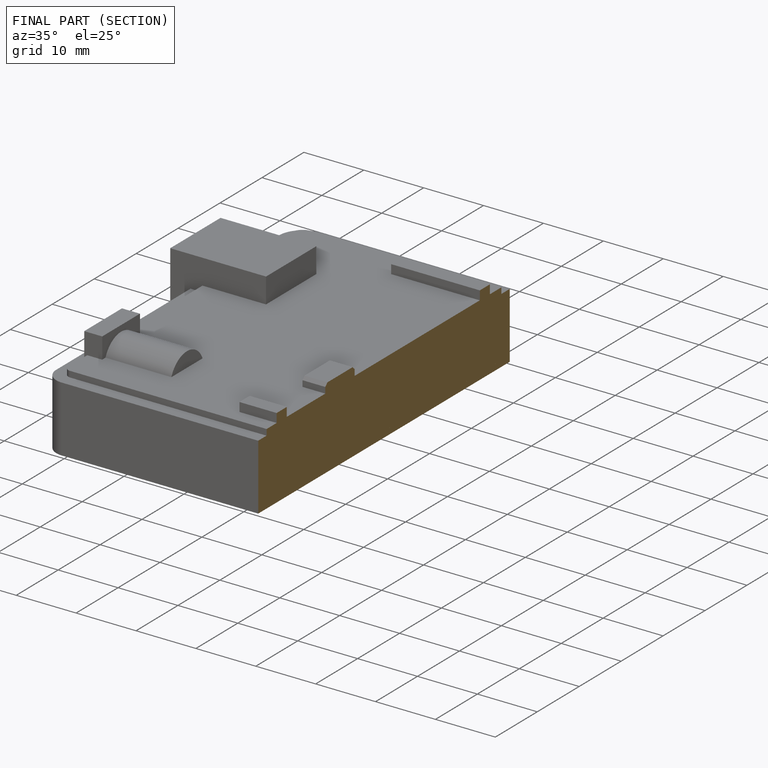
[diagram: finished part — half-section view (interior)]
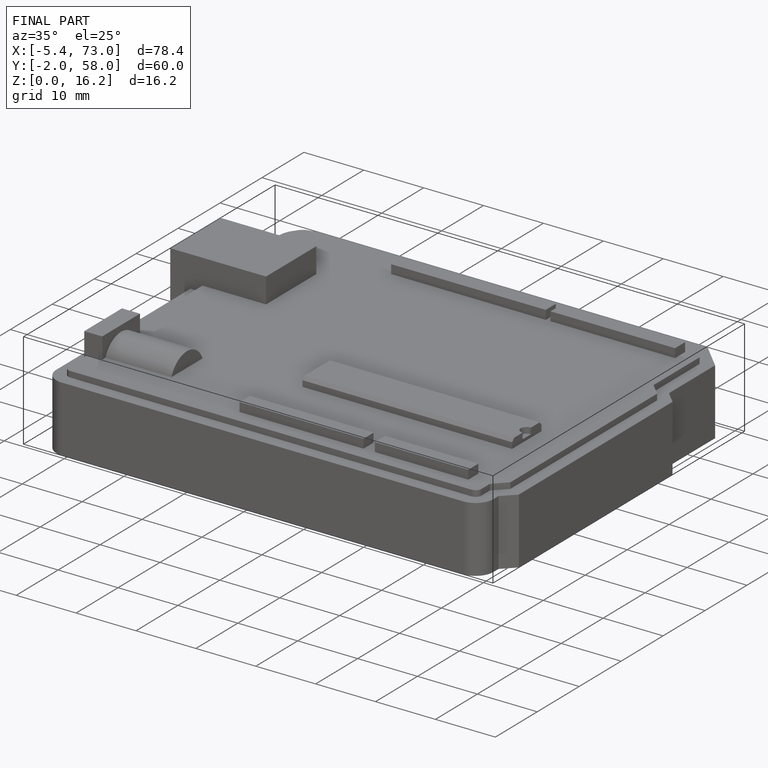
[diagram: finished part — iso view with bounding-box wireframe]
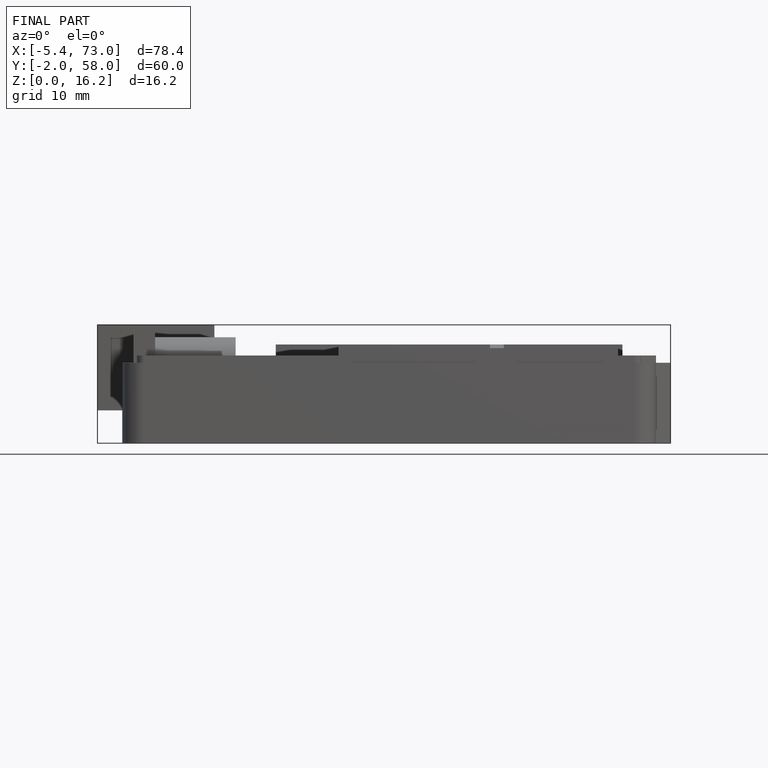
[diagram: finished part — front view with bounding-box wireframe]
